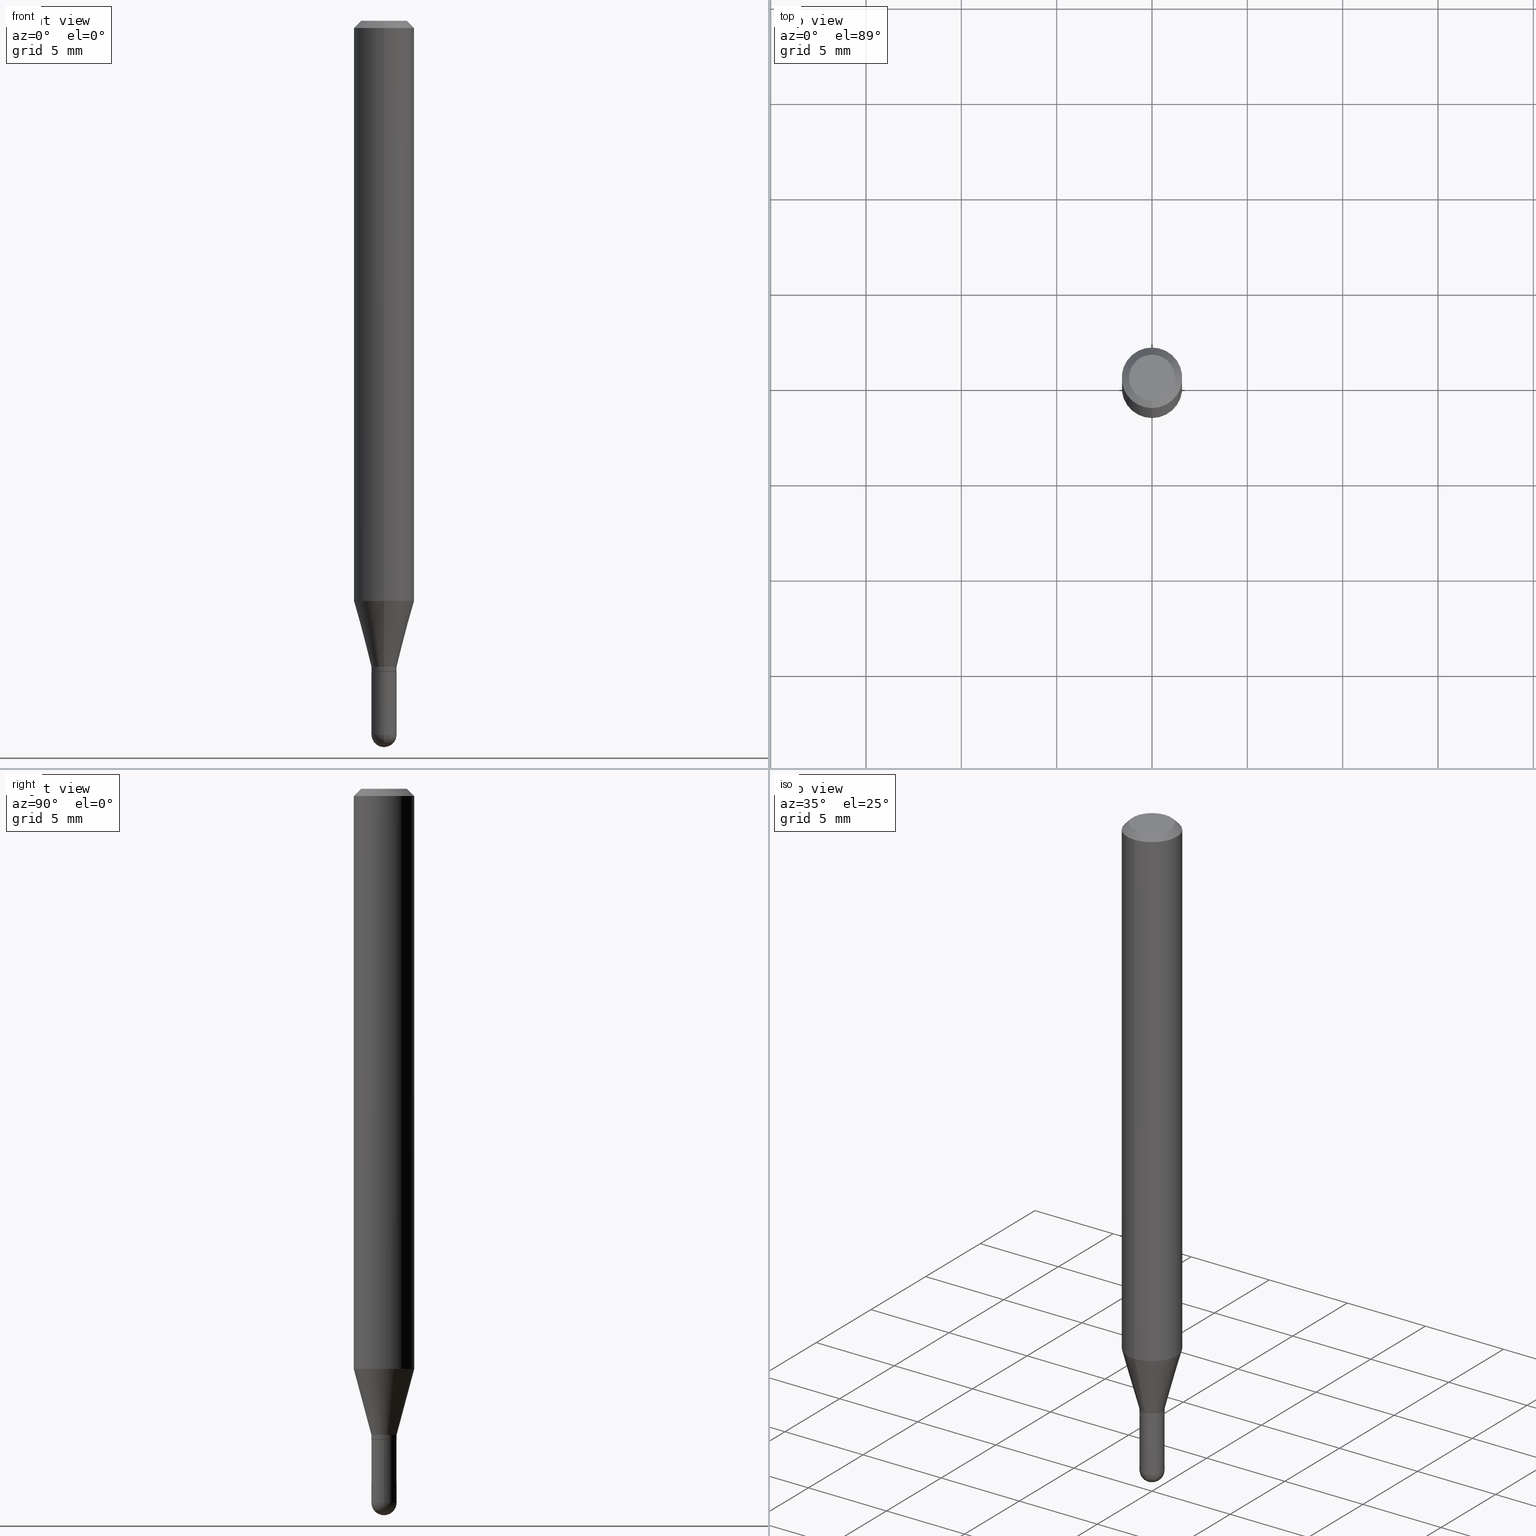
[diagram: canonical four-view strip — front | top / right | iso, engineering-drawing reading convention]
A machine part, canonical four-view strip (front | top / right | iso — engineering-drawing reading convention). The complete STEP part file that produces these views, byte-faithful:
ISO-10303-21;
HEADER;
FILE_DESCRIPTION (( 'STEP AP203' ),
    '1' );
FILE_NAME ('00929.STEP',
    '2024-03-07T18:58:56',
    ( '' ),
    ( '' ),
    'SwSTEP 2.0',
    'SolidWorks 2023',
    '' );
FILE_SCHEMA (( 'CONFIG_CONTROL_DESIGN' ));
ENDSEC;

DATA;
#1 = ORIENTED_EDGE ( 'NONE', *, *, #201, .T. ) ;
#2 = FACE_OUTER_BOUND ( 'NONE', #247, .T. ) ;
#3 = EDGE_CURVE ( 'NONE', #131, #213, #111, .T. ) ;
#4 = DIRECTION ( 'NONE',  ( -2.445468806185136877E-29, 3.491481338843145188E-15, 1.000000000000000000 ) ) ;
#5 = CIRCLE ( 'NONE', #411, 0.06250000000000000000 ) ;
#6 = AXIS2_PLACEMENT_3D ( 'NONE', #187, #18, #347 ) ;
#7 = CARTESIAN_POINT ( 'NONE',  ( 3.668183042626222503E-31, -5.237250888057462898E-17, -0.01500000000000000812 ) ) ;
#8 = DIRECTION ( 'NONE',  ( 1.000000000000000000, -6.982962677686265922E-15, 4.883557194083112340E-29 ) ) ;
#9 = EDGE_CURVE ( 'NONE', #321, #204, #487, .T. ) ;
#10 = DIRECTION ( 'NONE',  ( -2.445455361750813344E-29, 3.491500592038306462E-15, 1.000000000000000000 ) ) ;
#11 = CARTESIAN_POINT ( 'NONE',  ( 1.815570296198757649E-16, 0.02599999999999530464, -1.344000000000000306 ) ) ;
#12 = LINE ( 'NONE', #165, #62 ) ;
#13 = MANIFOLD_SOLID_BREP ( 'Body-Move/Copy2[1]', #440 ) ;
#14 = APPLICATION_PROTOCOL_DEFINITION ( 'international standard', 'config_control_design', 1994, #392 ) ;
#15 = DIRECTION ( 'NONE',  ( 2.438088387897960049E-29, -3.491481338843145188E-15, -1.000000000000000000 ) ) ;
#16 = AXIS2_PLACEMENT_3D ( 'NONE', #245, #37, #506 ) ;
#17 = LINE ( 'NONE', #305, #71 ) ;
#18 = DIRECTION ( 'NONE',  ( -2.445455361750813344E-29, 3.491500592038306462E-15, 1.000000000000000000 ) ) ;
#19 = EDGE_CURVE ( 'NONE', #321, #194, #364, .T. ) ;
#20 = DATE_AND_TIME ( #490, #405 ) ;
#21 = CARTESIAN_POINT ( 'NONE',  ( 3.667091493101772082E-29, -5.238814049103609942E-15, -1.500000000000000222 ) ) ;
#22 = CARTESIAN_POINT ( 'NONE',  ( 3.286692006193093008E-29, -4.692576795699484548E-15, -1.344000000000000306 ) ) ;
#23 = PERSON_AND_ORGANIZATION ( #394, #496 ) ;
#24 = ADVANCED_FACE ( 'NONE', ( #413 ), #336, .T. ) ;
#25 = ORIENTED_EDGE ( 'NONE', *, *, #395, .F. ) ;
#26 = CARTESIAN_POINT ( 'NONE',  ( 4.440892098500625669E-16, 0.06250000000000000000, -2.182187870023941539E-16 ) ) ;
#27 = DIRECTION ( 'NONE',  ( -2.445455361750813344E-29, 3.491500592038306462E-15, 1.000000000000000000 ) ) ;
#28 = CARTESIAN_POINT ( 'NONE',  ( 4.440892098500920998E-16, 0.06249999999999995143, -0.01500000000000022669 ) ) ;
#29 = EDGE_CURVE ( 'NONE', #204, #152, #122, .T. ) ;
#30 = CARTESIAN_POINT ( 'NONE',  ( -1.815570296198097471E-16, -0.02600000000000458195, -1.334000000000000075 ) ) ;
#31 = CIRCLE ( 'NONE', #16, 0.02600000000000000228 ) ;
#32 = CONICAL_SURFACE ( 'NONE', #385, 0.06250000000000000000, 0.7853981633974483900 ) ;
#33 = CARTESIAN_POINT ( 'NONE',  ( 0.000000000000000000, 0.000000000000000000, 0.000000000000000000 ) ) ;
#34 = ORIENTED_EDGE ( 'NONE', *, *, #44, .F. ) ;
#35 = EDGE_CURVE ( 'NONE', #194, #152, #12, .T. ) ;
#36 = ORIENTED_EDGE ( 'NONE', *, *, #238, .T. ) ;
#37 = DIRECTION ( 'NONE',  ( -2.445468806185136597E-29, 3.491481338843145583E-15, 1.000000000000000000 ) ) ;
#38 = VERTEX_POINT ( 'NONE', #330 ) ;
#39 = EDGE_CURVE ( 'NONE', #399, #478, #136, .T. ) ;
#40 = CYLINDRICAL_SURFACE ( 'NONE', #218, 0.02599999999999992248 ) ;
#41 = CARTESIAN_POINT ( 'NONE',  ( 3.262237452575584502E-29, -4.657661789779100517E-15, -1.334000000000000075 ) ) ;
#42 = ORIENTED_EDGE ( 'NONE', *, *, #463, .T. ) ;
#43 = CARTESIAN_POINT ( 'NONE',  ( 3.668183042626222503E-31, -5.237250888057462898E-17, -0.01500000000000000812 ) ) ;
#44 = EDGE_CURVE ( 'NONE', #69, #478, #189, .T. ) ;
#45 = CARTESIAN_POINT ( 'NONE',  ( 1.829647544582583037E-16, 0.02549999999999530420, -1.344000000000000306 ) ) ;
#46 = DIRECTION ( 'NONE',  ( -6.982962677686266711E-15, -1.000000000000000000, 0.000000000000000000 ) ) ;
#47 = ORIENTED_EDGE ( 'NONE', *, *, #97, .T. ) ;
#48 = DIRECTION ( 'NONE',  ( -6.982962677686266711E-15, -1.000000000000000000, 3.491500592038306462E-15 ) ) ;
#49 = DIRECTION ( 'NONE',  ( -6.982962677686265133E-15, -1.000000000000000000, 0.000000000000000000 ) ) ;
#50 = DIRECTION ( 'NONE',  ( 6.982962677686265922E-15, 1.000000000000000000, -3.483106191921935554E-15 ) ) ;
#51 = DIRECTION ( 'NONE',  ( -1.000000000000000000, 6.982962677686265922E-15, -4.883557194083112901E-29 ) ) ;
#52 = ORIENTED_EDGE ( 'NONE', *, *, #201, .F. ) ;
#53 = APPLICATION_CONTEXT ( 'configuration controlled 3d designs of mechanical parts and assemblies' ) ;
#54 = PLANE ( 'NONE',  #134 ) ;
#55 = DIRECTION ( 'NONE',  ( 1.839019923739601893E-15, 0.2588190451025252359, 0.9659258262890670910 ) ) ;
#56 = AXIS2_PLACEMENT_3D ( 'NONE', #486, #299, #444 ) ;
#57 = DIRECTION ( 'NONE',  ( -7.105427357601001070E-15, -1.000000000000000000, 0.000000000000000000 ) ) ;
#58 = CARTESIAN_POINT ( 'NONE',  ( 4.364351673553919652E-16, 0.06249999999999995143, -0.01500000000000022669 ) ) ;
#59 = CARTESIAN_POINT ( 'NONE',  ( 0.02599999999999999534, -4.874107949025031235E-15, -1.344000000000000306 ) ) ;
#60 = APPROVAL_DATE_TIME ( #183, #266 ) ;
#61 = EDGE_CURVE ( 'NONE', #38, #371, #507, .T. ) ;
#62 = VECTOR ( 'NONE', #223, 39.37007874015748143 ) ;
#63 = APPROVAL_DATE_TIME ( #351, #286 ) ;
#64 = VECTOR ( 'NONE', #168, 39.37007874015748143 ) ;
#65 = CARTESIAN_POINT ( 'NONE',  ( 0.000000000000000000, 0.000000000000000000, 0.000000000000000000 ) ) ;
#66 = PERSON_AND_ORGANIZATION ( #394, #496 ) ;
#67 = DIRECTION ( 'NONE',  ( -2.445468806185136597E-29, 3.491481338843145583E-15, 1.000000000000000000 ) ) ;
#68 = DIRECTION ( 'NONE',  ( 1.000000000000000000, -6.982962677686266711E-15, 4.876176775795935793E-29 ) ) ;
#69 = VERTEX_POINT ( 'NONE', #148 ) ;
#70 = DIRECTION ( 'NONE',  ( -6.982962677686265922E-15, -1.000000000000000000, 0.000000000000000000 ) ) ;
#71 = VECTOR ( 'NONE', #126, 39.37007874015748143 ) ;
#72 = AXIS2_PLACEMENT_3D ( 'NONE', #41, #403, #130 ) ;
#73 = ORIENTED_EDGE ( 'NONE', *, *, #428, .T. ) ;
#74 = ORIENTED_EDGE ( 'NONE', *, *, #324, .F. ) ;
#75 = FACE_OUTER_BOUND ( 'NONE', #210, .T. ) ;
#76 = ADVANCED_FACE ( 'NONE', ( #75 ), #315, .T. ) ;
#77 = EDGE_LOOP ( 'NONE', ( #88, #333, #465, #472 ) ) ;
#78 = CARTESIAN_POINT ( 'NONE',  ( 3.602397587965025364E-29, -5.149627575132580366E-15, -1.474000000000000199 ) ) ;
#79 = FACE_OUTER_BOUND ( 'NONE', #329, .T. ) ;
#80 = ORIENTED_EDGE ( 'NONE', *, *, #428, .F. ) ;
#81 = AXIS2_PLACEMENT_3D ( 'NONE', #99, #373, #50 ) ;
#82 = AXIS2_PLACEMENT_3D ( 'NONE', #269, #462, #158 ) ;
#83 = DIRECTION ( 'NONE',  ( -6.982962677686265922E-15, -1.000000000000000000, 0.000000000000000000 ) ) ;
#84 = EDGE_LOOP ( 'NONE', ( #239, #511, #425, #331 ) ) ;
#85 = FACE_OUTER_BOUND ( 'NONE', #164, .T. ) ;
#86 = ORIENTED_EDGE ( 'NONE', *, *, #9, .T. ) ;
#87 = DIRECTION ( 'NONE',  ( -2.445468806185136597E-29, 3.491481338843145583E-15, 1.000000000000000000 ) ) ;
#88 = ORIENTED_EDGE ( 'NONE', *, *, #434, .F. ) ;
#89 = CARTESIAN_POINT ( 'NONE',  ( 3.602397587965025364E-29, -5.149627575132580366E-15, -1.474000000000000199 ) ) ;
#90 = DIRECTION ( 'NONE',  ( -6.982962677686266711E-15, -1.000000000000000000, 3.491500592038306462E-15 ) ) ;
#91 = VECTOR ( 'NONE', #501, 39.37007874015748143 ) ;
#92 = CIRCLE ( 'NONE', #236, 0.02600000000000000228 ) ;
#93 = DIRECTION ( 'NONE',  ( -2.445455361750813344E-29, 3.491500592038306462E-15, 1.000000000000000000 ) ) ;
#94 = EDGE_LOOP ( 'NONE', ( #73, #441 ) ) ;
#95 = FACE_OUTER_BOUND ( 'NONE', #474, .T. ) ;
#96 = DIRECTION ( 'NONE',  ( -2.445468806185136597E-29, 3.491481338843145583E-15, 1.000000000000000000 ) ) ;
#97 = EDGE_CURVE ( 'NONE', #151, #367, #357, .T. ) ;
#98 = DIRECTION ( 'NONE',  ( -6.982962677686265922E-15, -1.000000000000000000, 0.000000000000000000 ) ) ;
#99 = CARTESIAN_POINT ( 'NONE',  ( 3.668183042626222503E-31, -5.237250888057462898E-17, -0.01500000000000000812 ) ) ;
#100 = EDGE_LOOP ( 'NONE', ( #366, #80, #47, #124 ) ) ;
#101 = DIRECTION ( 'NONE',  ( -2.445468806185136597E-29, 3.491481338843145583E-15, 1.000000000000000000 ) ) ;
#102 = DIRECTION ( 'NONE',  ( -4.851104656540964275E-15, -0.7071067811865500152, -0.7071067811865450192 ) ) ;
#103 = CARTESIAN_POINT ( 'NONE',  ( 2.929117879069690372E-29, -4.182050087227853804E-15, -1.197780145523736239 ) ) ;
#104 = AXIS2_PLACEMENT_3D ( 'NONE', #380, #8, #162 ) ;
#105 = AXIS2_PLACEMENT_3D ( 'NONE', #7, #372, #448 ) ;
#106 = ORIENTED_EDGE ( 'NONE', *, *, #133, .T. ) ;
#107 = CARTESIAN_POINT ( 'NONE',  ( -1.815570296198423862E-16, -0.02599999999999992248, 9.077901539299569733E-17 ) ) ;
#108 = PERSON_AND_ORGANIZATION ( #394, #496 ) ;
#109 = ADVANCED_FACE ( 'NONE', ( #362 ), #301, .T. ) ;
#110 = AXIS2_PLACEMENT_3D ( 'NONE', #439, #476, #98 ) ;
#111 = CIRCLE ( 'NONE', #104, 0.02599999999999997452 ) ;
#112 = CARTESIAN_POINT ( 'NONE',  ( 3.604621020316892110E-29, -5.146443493454796836E-15, -1.474000000000000199 ) ) ;
#113 = EDGE_CURVE ( 'NONE', #371, #38, #5, .T. ) ;
#114 = APPROVAL_ROLE ( '' ) ;
#115 = COORDINATED_UNIVERSAL_TIME_OFFSET ( 5, 0, .BEHIND. ) ;
#116 = CARTESIAN_POINT ( 'NONE',  ( 3.286692006193093008E-29, -4.692576795699484548E-15, -1.344000000000000306 ) ) ;
#117 = ADVANCED_BREP_SHAPE_REPRESENTATION ( '00929', ( #13, #359, #174 ), #343 ) ;
#118 = EDGE_LOOP ( 'NONE', ( #52, #198 ) ) ;
#119 = ORIENTED_EDGE ( 'NONE', *, *, #324, .T. ) ;
#120 = CLOSED_SHELL ( 'NONE', ( #447, #109, #344, #159, #407, #382, #199, #138, #171, #294, #24, #272 ) ) ;
#121 = LOCAL_TIME ( 13, 58, 56.00000000000000000, #339 ) ;
#122 = CIRCLE ( 'NONE', #235, 0.02599999999999992248 ) ;
#123 = APPROVAL_PERSON_ORGANIZATION ( #186, #266, #114 ) ;
#124 = ORIENTED_EDGE ( 'NONE', *, *, #443, .T. ) ;
#125 = CARTESIAN_POINT ( 'NONE',  ( 2.166527961827565846E-46, -3.093261802976753725E-32, -8.859405065060967167E-18 ) ) ;
#126 = DIRECTION ( 'NONE',  ( -4.937700262164674260E-15, -0.7071067811865632269, 0.7071067811865319186 ) ) ;
#127 = CARTESIAN_POINT ( 'NONE',  ( 0.000000000000000000, 0.000000000000000000, 0.000000000000000000 ) ) ;
#128 = VERTEX_POINT ( 'NONE', #139 ) ;
#129 = CALENDAR_DATE ( 2024, 7, 3 ) ;
#130 = DIRECTION ( 'NONE',  ( -6.982962677686266711E-15, -1.000000000000000000, 0.000000000000000000 ) ) ;
#131 = VERTEX_POINT ( 'NONE', #21 ) ;
#132 = LENGTH_MEASURE_WITH_UNIT ( LENGTH_MEASURE( 0.02539999999999999897 ), #214 );
#133 = EDGE_CURVE ( 'NONE', #404, #321, #17, .T. ) ;
#134 = AXIS2_PLACEMENT_3D ( 'NONE', #11, #15, #304 ) ;
#135 = LOCAL_TIME ( 13, 58, 56.00000000000000000, #230 ) ;
#136 = LINE ( 'NONE', #377, #273 ) ;
#137 = VERTEX_POINT ( 'NONE', #45 ) ;
#138 = ADVANCED_FACE ( 'NONE', ( #184 ), #431, .T. ) ;
#139 = CARTESIAN_POINT ( 'NONE',  ( -4.364351673553912750E-16, -0.06250000000000005551, -0.01499999999999979128 ) ) ;
#140 = CARTESIAN_POINT ( 'NONE',  ( 3.286710075512824263E-29, -4.692550919405188553E-15, -1.344000000000000306 ) ) ;
#141 = SPHERICAL_SURFACE ( 'NONE', #489, 0.02599999999999997452 ) ;
#142 = CARTESIAN_POINT ( 'NONE',  ( -0.02600000000000000228, 1.847411112976260645E-16, -1.278923123466275736E-30 ) ) ;
#143 = EDGE_CURVE ( 'NONE', #152, #38, #206, .T. ) ;
#144 = CIRCLE ( 'NONE', #423, 0.02549999999999999489 ) ;
#145 = CARTESIAN_POINT ( 'NONE',  ( 3.840629472727447874E-16, 0.04749999999999999362, -1.747056831868805136E-16 ) ) ;
#146 = EDGE_CURVE ( 'NONE', #194, #321, #217, .T. ) ;
#147 = DATE_AND_TIME ( #386, #135 ) ;
#148 = CARTESIAN_POINT ( 'NONE',  ( -0.02599999999999999534, -4.734756095132367271E-15, -1.344000000000000306 ) ) ;
#149 = CARTESIAN_POINT ( 'NONE',  ( -4.364351673553624816E-16, -0.06250000000000420497, -1.197780145523736017 ) ) ;
#150 = EDGE_CURVE ( 'NONE', #157, #69, #408, .T. ) ;
#151 = VERTEX_POINT ( 'NONE', #145 ) ;
#152 = VERTEX_POINT ( 'NONE', #179 ) ;
#153 = AXIS2_PLACEMENT_3D ( 'NONE', #494, #67, #192 ) ;
#154 = AXIS2_PLACEMENT_3D ( 'NONE', #220, #208, #48 ) ;
#155 = ORIENTED_EDGE ( 'NONE', *, *, #256, .F. ) ;
#156 = CARTESIAN_POINT ( 'NONE',  ( 3.604621020316892110E-29, -5.146443493454796836E-15, -1.474000000000000199 ) ) ;
#157 = VERTEX_POINT ( 'NONE', #341 ) ;
#158 = DIRECTION ( 'NONE',  ( 1.000000000000000000, -6.982962677686258822E-15, 0.000000000000000000 ) ) ;
#159 = ADVANCED_FACE ( 'NONE', ( #166 ), #332, .T. ) ;
#160 = CARTESIAN_POINT ( 'NONE',  ( 1.847411112976576929E-16, 0.02599999999999514505, -1.343500000000000361 ) ) ;
#161 = ORIENTED_EDGE ( 'NONE', *, *, #284, .T. ) ;
#162 = DIRECTION ( 'NONE',  ( 6.982962677686265922E-15, 1.000000000000000000, 0.000000000000000000 ) ) ;
#163 = CIRCLE ( 'NONE', #369, 0.06250000000000000000 ) ;
#164 = EDGE_LOOP ( 'NONE', ( #246, #361, #86, #255 ) ) ;
#165 = CARTESIAN_POINT ( 'NONE',  ( 1.847411112976254729E-16, 0.02599999999999992248, -9.077901539299569733E-17 ) ) ;
#166 = FACE_OUTER_BOUND ( 'NONE', #483, .T. ) ;
#167 = ORIENTED_EDGE ( 'NONE', *, *, #417, .T. ) ;
#168 = DIRECTION ( 'NONE',  ( -2.445455361750813344E-29, 3.491500592038306462E-15, 1.000000000000000000 ) ) ;
#169 = DIRECTION ( 'NONE',  ( -2.445455361750813344E-29, 3.491500592038306462E-15, 1.000000000000000000 ) ) ;
#170 = ORIENTED_EDGE ( 'NONE', *, *, #443, .F. ) ;
#171 = ADVANCED_FACE ( 'NONE', ( #388 ), #271, .F. ) ;
#172 = DIRECTION ( 'NONE',  ( -2.445455361750813344E-29, 3.491500592038306462E-15, 1.000000000000000000 ) ) ;
#173 = AXIS2_PLACEMENT_3D ( 'NONE', #140, #101, #485 ) ;
#174 = AXIS2_PLACEMENT_3D ( 'NONE', #257, #409, #215 ) ;
#175 = APPROVAL_PERSON_ORGANIZATION ( #265, #306, #348 ) ;
#176 = FACE_OUTER_BOUND ( 'NONE', #293, .T. ) ;
#177 = APPROVAL_STATUS ( 'not_yet_approved' ) ;
#178 = FACE_OUTER_BOUND ( 'NONE', #203, .T. ) ;
#179 = CARTESIAN_POINT ( 'NONE',  ( 3.144151605738750813E-16, 0.02599999999999526648, -1.334000000000000075 ) ) ;
#180 = APPROVAL_STATUS ( 'not_yet_approved' ) ;
#181 = AXIS2_PLACEMENT_3D ( 'NONE', #103, #262, #346 ) ;
#182 = CC_DESIGN_SECURITY_CLASSIFICATION ( #268, ( #412 ) ) ;
#183 = DATE_AND_TIME ( #383, #261 ) ;
#184 = FACE_OUTER_BOUND ( 'NONE', #100, .T. ) ;
#185 = CARTESIAN_POINT ( 'NONE',  ( -1.780655482809668879E-16, -0.02550000000000468559, -1.344000000000000306 ) ) ;
#186 = PERSON_AND_ORGANIZATION ( #394, #496 ) ;
#187 = CARTESIAN_POINT ( 'NONE',  ( 3.262237452575584502E-29, -4.657661789779100517E-15, -1.334000000000000075 ) ) ;
#188 = PERSON_AND_ORGANIZATION_ROLE ( 'design_supplier' ) ;
#189 = CIRCLE ( 'NONE', #173, 0.02599999999999999534 ) ;
#190 = AXIS2_PLACEMENT_3D ( 'NONE', #335, #445, #512 ) ;
#191 = SHAPE_DEFINITION_REPRESENTATION ( #389, #117 ) ;
#192 = DIRECTION ( 'NONE',  ( 1.000000000000000000, -6.982962677686266711E-15, 4.876176775795935793E-29 ) ) ;
#193 = DIRECTION ( 'NONE',  ( 2.445455361750812783E-29, -3.491500592038306462E-15, -1.000000000000000000 ) ) ;
#194 = VERTEX_POINT ( 'NONE', #160 ) ;
#195 = DIRECTION ( 'NONE',  ( -2.445455361750812783E-29, 3.491500592038306462E-15, 1.000000000000000000 ) ) ;
#196 = ADVANCED_FACE ( 'NONE', ( #500 ), #422, .T. ) ;
#197 = CARTESIAN_POINT ( 'NONE',  ( 1.815570296198788710E-16, 0.02599999999999483974, -1.474000000000000199 ) ) ;
#198 = ORIENTED_EDGE ( 'NONE', *, *, #238, .F. ) ;
#199 = ADVANCED_FACE ( 'NONE', ( #393 ), #202, .T. ) ;
#200 = ORIENTED_EDGE ( 'NONE', *, *, #19, .T. ) ;
#201 = EDGE_CURVE ( 'NONE', #404, #137, #144, .T. ) ;
#202 = CYLINDRICAL_SURFACE ( 'NONE', #227, 0.06250000000000000000 ) ;
#203 = EDGE_LOOP ( 'NONE', ( #291, #437, #435, #25 ) ) ;
#204 = VERTEX_POINT ( 'NONE', #318 ) ;
#205 = AXIS2_PLACEMENT_3D ( 'NONE', #112, #259, #295 ) ;
#206 = LINE ( 'NONE', #296, #353 ) ;
#207 = ORIENTED_EDGE ( 'NONE', *, *, #228, .F. ) ;
#208 = DIRECTION ( 'NONE',  ( -2.445455361750813344E-29, 3.491500592038306462E-15, 1.000000000000000000 ) ) ;
#209 = FACE_OUTER_BOUND ( 'NONE', #84, .T. ) ;
#210 = EDGE_LOOP ( 'NONE', ( #427, #167, #322, #312, #34 ) ) ;
#211 = DIRECTION ( 'NONE',  ( -6.982962677686265922E-15, -1.000000000000000000, 4.370956789862821150E-15 ) ) ;
#212 = ORIENTED_EDGE ( 'NONE', *, *, #228, .T. ) ;
#213 = VERTEX_POINT ( 'NONE', #197 ) ;
#214 =( LENGTH_UNIT ( ) NAMED_UNIT ( * ) SI_UNIT ( $, .METRE. ) );
#215 = DIRECTION ( 'NONE',  ( 1.000000000000000000, 0.000000000000000000, 0.000000000000000000 ) ) ;
#216 = ORIENTED_EDGE ( 'NONE', *, *, #35, .T. ) ;
#217 = CIRCLE ( 'NONE', #368, 0.02599999999999991901 ) ;
#218 = AXIS2_PLACEMENT_3D ( 'NONE', #127, #503, #451 ) ;
#219 = CARTESIAN_POINT ( 'NONE',  ( 3.285469278512218956E-29, -4.690831045403466411E-15, -1.343500000000000361 ) ) ;
#220 = CARTESIAN_POINT ( 'NONE',  ( 0.000000000000000000, 0.000000000000000000, 0.000000000000000000 ) ) ;
#221 = CC_DESIGN_DATE_AND_TIME_ASSIGNMENT ( #313, #311, ( #268 ) ) ;
#222 = DIRECTION ( 'NONE',  ( 4.937700262164548042E-15, 0.7071067811865451302, -0.7071067811865499042 ) ) ;
#223 = DIRECTION ( 'NONE',  ( -2.445455361750813344E-29, 3.491500592038306462E-15, 1.000000000000000000 ) ) ;
#224 = PRODUCT ( '00929', '00929', '', ( #378 ) ) ;
#225 = COORDINATED_UNIVERSAL_TIME_OFFSET ( 5, 0, .BEHIND. ) ;
#226 = CARTESIAN_POINT ( 'NONE',  ( 0.02600000000000000228, -5.101054236049835376E-15, -1.474000000000000199 ) ) ;
#227 = AXIS2_PLACEMENT_3D ( 'NONE', #314, #27, #275 ) ;
#228 = EDGE_CURVE ( 'NONE', #137, #194, #498, .T. ) ;
#229 = CONICAL_SURFACE ( 'NONE', #56, 0.02599999999999992248, 0.2617993877991505181 ) ;
#230 = COORDINATED_UNIVERSAL_TIME_OFFSET ( 5, 0, .BEHIND. ) ;
#231 = FACE_OUTER_BOUND ( 'NONE', #118, .T. ) ;
#232 = PRODUCT_RELATED_PRODUCT_CATEGORY ( 'detail', '', ( #224 ) ) ;
#233 = ADVANCED_FACE ( 'NONE', ( #79 ), #54, .F. ) ;
#234 = ORIENTED_EDGE ( 'NONE', *, *, #39, .F. ) ;
#235 = AXIS2_PLACEMENT_3D ( 'NONE', #340, #93, #46 ) ;
#236 = AXIS2_PLACEMENT_3D ( 'NONE', #156, #87, #482 ) ;
#237 = DIRECTION ( 'NONE',  ( 6.982962677686265922E-15, 1.000000000000000000, 0.000000000000000000 ) ) ;
#238 = EDGE_CURVE ( 'NONE', #137, #404, #415, .T. ) ;
#239 = ORIENTED_EDGE ( 'NONE', *, *, #452, .F. ) ;
#240 = DIRECTION ( 'NONE',  ( -2.445455361750813344E-29, 3.491500592038306462E-15, 1.000000000000000000 ) ) ;
#241 = VECTOR ( 'NONE', #222, 39.37007874015748143 ) ;
#242 = ORIENTED_EDGE ( 'NONE', *, *, #349, .T. ) ;
#243 = CIRCLE ( 'NONE', #310, 0.02600000000000000228 ) ;
#244 = LINE ( 'NONE', #30, #354 ) ;
#245 = CARTESIAN_POINT ( 'NONE',  ( 3.604621020316892110E-29, -5.146443493454796836E-15, -1.474000000000000199 ) ) ;
#246 = ORIENTED_EDGE ( 'NONE', *, *, #35, .F. ) ;
#247 = EDGE_LOOP ( 'NONE', ( #200, #216, #436, #398 ) ) ;
#248 = CARTESIAN_POINT ( 'NONE',  ( -1.847411112975899002E-16, -0.02600000000000513706, -1.474000000000000199 ) ) ;
#249 = DIRECTION ( 'NONE',  ( -2.445455361750813344E-29, 3.491500592038306462E-15, 1.000000000000000000 ) ) ;
#250 = UNCERTAINTY_MEASURE_WITH_UNIT (LENGTH_MEASURE( 1.000000000000000082E-05 ), #406, 'distance_accuracy_value', 'NONE');
#251 = ORIENTED_EDGE ( 'NONE', *, *, #143, .F. ) ;
#252 = DIRECTION ( 'NONE',  ( 6.982962677686265922E-15, 1.000000000000000000, 0.000000000000000000 ) ) ;
#253 = CIRCLE ( 'NONE', #292, 0.04749999999999999362 ) ;
#254 = DIRECTION ( 'NONE',  ( 1.000000000000000000, -6.982962677686257244E-15, 0.000000000000000000 ) ) ;
#255 = ORIENTED_EDGE ( 'NONE', *, *, #277, .F. ) ;
#256 = EDGE_CURVE ( 'NONE', #213, #157, #31, .T. ) ;
#257 = CARTESIAN_POINT ( 'NONE',  ( 0.000000000000000000, 0.000000000000000000, 0.000000000000000000 ) ) ;
#258 = DIRECTION ( 'NONE',  ( 2.445455361750813344E-29, -3.491500592038306462E-15, -1.000000000000000000 ) ) ;
#259 = DIRECTION ( 'NONE',  ( -2.445468806185136597E-29, 3.491481338843145583E-15, 1.000000000000000000 ) ) ;
#260 = CC_DESIGN_PERSON_AND_ORGANIZATION_ASSIGNMENT ( #493, #420, ( #268 ) ) ;
#261 = LOCAL_TIME ( 13, 58, 56.00000000000000000, #345 ) ;
#262 = DIRECTION ( 'NONE',  ( -2.445455361750813344E-29, 3.491500592038306462E-15, 1.000000000000000000 ) ) ;
#263 = LINE ( 'NONE', #370, #337 ) ;
#264 = APPROVAL_STATUS ( 'not_yet_approved' ) ;
#265 = PERSON_AND_ORGANIZATION ( #394, #496 ) ;
#266 = APPROVAL ( #180, 'UNSPECIFIED' ) ;
#267 = AXIS2_PLACEMENT_3D ( 'NONE', #464, #432, #83 ) ;
#268 = SECURITY_CLASSIFICATION ( '', '', #270 ) ;
#269 = CARTESIAN_POINT ( 'NONE',  ( 3.286710075512824263E-29, -4.692550919405188553E-15, -1.344000000000000306 ) ) ;
#270 = SECURITY_CLASSIFICATION_LEVEL ( 'unclassified' ) ;
#271 = PLANE ( 'NONE',  #279 ) ;
#272 = ADVANCED_FACE ( 'NONE', ( #85 ), #40, .T. ) ;
#273 = VECTOR ( 'NONE', #4, 39.37007874015748143 ) ;
#274 = CIRCLE ( 'NONE', #190, 0.04749999999999999362 ) ;
#275 = DIRECTION ( 'NONE',  ( -6.982962677686265922E-15, -1.000000000000000000, 3.491500592038306462E-15 ) ) ;
#276 = CARTESIAN_POINT ( 'NONE',  ( 1.811883976188583721E-16, 0.02549999999999530420, -1.344000000000000306 ) ) ;
#277 = EDGE_CURVE ( 'NONE', #152, #204, #327, .T. ) ;
#278 = ORIENTED_EDGE ( 'NONE', *, *, #19, .F. ) ;
#279 = AXIS2_PLACEMENT_3D ( 'NONE', #421, #193, #358 ) ;
#280 = EDGE_LOOP ( 'NONE', ( #1, #212, #278, #374 ) ) ;
#281 = CC_DESIGN_APPROVAL ( #286, ( #328 ) ) ;
#282 = DESIGN_CONTEXT ( 'detailed design', #392, 'design' ) ;
#283 = ORIENTED_EDGE ( 'NONE', *, *, #150, .T. ) ;
#284 = EDGE_CURVE ( 'NONE', #38, #367, #492, .T. ) ;
#285 = ORIENTED_EDGE ( 'NONE', *, *, #44, .T. ) ;
#286 = APPROVAL ( #177, 'UNSPECIFIED' ) ;
#287 = DIRECTION ( 'NONE',  ( -6.982962677686265922E-15, -1.000000000000000000, 3.483106191921935554E-15 ) ) ;
#288 = ORIENTED_EDGE ( 'NONE', *, *, #459, .F. ) ;
#289 =( NAMED_UNIT ( * ) SI_UNIT ( $, .STERADIAN. ) SOLID_ANGLE_UNIT ( ) );
#290 = AXIS2_PLACEMENT_3D ( 'NONE', #65, #352, #495 ) ;
#291 = ORIENTED_EDGE ( 'NONE', *, *, #29, .T. ) ;
#292 = AXIS2_PLACEMENT_3D ( 'NONE', #125, #249, #90 ) ;
#293 = EDGE_LOOP ( 'NONE', ( #251, #401, #320, #470 ) ) ;
#294 = ADVANCED_FACE ( 'NONE', ( #231 ), #418, .F. ) ;
#295 = DIRECTION ( 'NONE',  ( 1.000000000000000000, -6.982962677686257244E-15, 0.000000000000000000 ) ) ;
#296 = CARTESIAN_POINT ( 'NONE',  ( 1.847411112976581120E-16, 0.02599999999999526648, -1.334000000000000075 ) ) ;
#297 = APPLICATION_PROTOCOL_DEFINITION ( 'international standard', 'config_control_design', 1994, #53 ) ;
#298 = CARTESIAN_POINT ( 'NONE',  ( 3.604621020316892110E-29, -5.146443493454796836E-15, -1.474000000000000199 ) ) ;
#299 = DIRECTION ( 'NONE',  ( -2.445455361750813344E-29, 3.491500592038306462E-15, 1.000000000000000000 ) ) ;
#300 = APPROVAL_ROLE ( '' ) ;
#301 = CONICAL_SURFACE ( 'NONE', #334, 0.02549999999999999489, 0.7853981633974739252 ) ;
#302 = ORIENTED_EDGE ( 'NONE', *, *, #3, .F. ) ;
#303 = CONICAL_SURFACE ( 'NONE', #72, 0.02599999999999992248, 0.2617993877991505181 ) ;
#304 = DIRECTION ( 'NONE',  ( -1.000000000000000000, 6.982962677686265922E-15, -4.876176775795935793E-29 ) ) ;
#305 = CARTESIAN_POINT ( 'NONE',  ( -1.780655482809668879E-16, -0.02550000000000468559, -1.344000000000000306 ) ) ;
#306 = APPROVAL ( #264, 'UNSPECIFIED' ) ;
#307 = DATE_TIME_ROLE ( 'creation_date' ) ;
#308 = CARTESIAN_POINT ( 'NONE',  ( -1.815570296198101169E-16, -0.02600000000000469644, -1.343500000000000361 ) ) ;
#309 = DIMENSIONAL_EXPONENTS ( 1.000000000000000000, 0.000000000000000000, 0.000000000000000000, 0.000000000000000000, 0.000000000000000000, 0.000000000000000000, 0.000000000000000000 ) ;
#310 = AXIS2_PLACEMENT_3D ( 'NONE', #298, #96, #254 ) ;
#311 = DATE_TIME_ROLE ( 'classification_date' ) ;
#312 = ORIENTED_EDGE ( 'NONE', *, *, #39, .T. ) ;
#313 = DATE_AND_TIME ( #342, #468 ) ;
#314 = CARTESIAN_POINT ( 'NONE',  ( 0.000000000000000000, 0.000000000000000000, 0.000000000000000000 ) ) ;
#315 = CYLINDRICAL_SURFACE ( 'NONE', #153, 0.02600000000000000228 ) ;
#316 = DIRECTION ( 'NONE',  ( -1.000000000000000000, 6.982962677686265922E-15, -4.883557194083112901E-29 ) ) ;
#317 = ORIENTED_EDGE ( 'NONE', *, *, #434, .T. ) ;
#318 = CARTESIAN_POINT ( 'NONE',  ( -1.815570296198097471E-16, -0.02600000000000458195, -1.334000000000000075 ) ) ;
#319 = CIRCLE ( 'NONE', #205, 0.02600000000000000228 ) ;
#320 = ORIENTED_EDGE ( 'NONE', *, *, #395, .T. ) ;
#321 = VERTEX_POINT ( 'NONE', #308 ) ;
#322 = ORIENTED_EDGE ( 'NONE', *, *, #375, .T. ) ;
#323 = DIRECTION ( 'NONE',  ( -1.000000000000000000, 7.105427357601001070E-15, -4.926315508542082329E-29 ) ) ;
#324 = EDGE_CURVE ( 'NONE', #478, #69, #477, .T. ) ;
#325 = VECTOR ( 'NONE', #450, 39.37007874015748143 ) ;
#326 = VERTEX_POINT ( 'NONE', #248 ) ;
#327 = CIRCLE ( 'NONE', #6, 0.02599999999999992248 ) ;
#328 = PRODUCT_DEFINITION ( 'UNKNOWN', '', #412, #282 ) ;
#329 = EDGE_LOOP ( 'NONE', ( #119, #285 ) ) ;
#330 = CARTESIAN_POINT ( 'NONE',  ( 4.440892098500917054E-16, 0.06249999999999580197, -1.197780145523736683 ) ) ;
#331 = ORIENTED_EDGE ( 'NONE', *, *, #97, .F. ) ;
#332 = CYLINDRICAL_SURFACE ( 'NONE', #290, 0.06250000000000000000 ) ;
#333 = ORIENTED_EDGE ( 'NONE', *, *, #3, .T. ) ;
#334 = AXIS2_PLACEMENT_3D ( 'NONE', #384, #491, #338 ) ;
#335 = CARTESIAN_POINT ( 'NONE',  ( 2.166527961827565846E-46, -3.093261802976753725E-32, -8.859405065060967167E-18 ) ) ;
#336 = CONICAL_SURFACE ( 'NONE', #110, 0.02549999999999999489, 0.7853981633974739252 ) ;
#337 = VECTOR ( 'NONE', #102, 39.37007874015748143 ) ;
#338 = DIRECTION ( 'NONE',  ( -6.982962677686265922E-15, -1.000000000000000000, 0.000000000000000000 ) ) ;
#339 = COORDINATED_UNIVERSAL_TIME_OFFSET ( 5, 0, .BEHIND. ) ;
#340 = CARTESIAN_POINT ( 'NONE',  ( 3.262237452575584502E-29, -4.657661789779100517E-15, -1.334000000000000075 ) ) ;
#341 = CARTESIAN_POINT ( 'NONE',  ( -0.02600000000000000228, -4.734756095132367271E-15, -1.474000000000000199 ) ) ;
#342 = CALENDAR_DATE ( 2024, 7, 3 ) ;
#343 =( GEOMETRIC_REPRESENTATION_CONTEXT ( 3 ) GLOBAL_UNCERTAINTY_ASSIGNED_CONTEXT ( ( #250 ) ) GLOBAL_UNIT_ASSIGNED_CONTEXT ( ( #406, #453, #289 ) ) REPRESENTATION_CONTEXT ( 'NONE', 'WORKASPACE' ) );
#344 = ADVANCED_FACE ( 'NONE', ( #209 ), #32, .T. ) ;
#345 = COORDINATED_UNIVERSAL_TIME_OFFSET ( 5, 0, .BEHIND. ) ;
#346 = DIRECTION ( 'NONE',  ( -6.982962677686265922E-15, -1.000000000000000000, 4.370956789862821150E-15 ) ) ;
#347 = DIRECTION ( 'NONE',  ( -6.982962677686266711E-15, -1.000000000000000000, 0.000000000000000000 ) ) ;
#348 = APPROVAL_ROLE ( '' ) ;
#349 = EDGE_CURVE ( 'NONE', #399, #213, #243, .T. ) ;
#350 = DIRECTION ( 'NONE',  ( -6.982962677686265922E-15, -1.000000000000000000, 3.491500592038306462E-15 ) ) ;
#351 = DATE_AND_TIME ( #129, #121 ) ;
#352 = DIRECTION ( 'NONE',  ( -2.445455361750813344E-29, 3.491500592038306462E-15, 1.000000000000000000 ) ) ;
#353 = VECTOR ( 'NONE', #55, 39.37007874015748854 ) ;
#354 = VECTOR ( 'NONE', #504, 39.37007874015748854 ) ;
#355 = ORIENTED_EDGE ( 'NONE', *, *, #61, .T. ) ;
#356 = APPROVAL_DATE_TIME ( #147, #306 ) ;
#357 = LINE ( 'NONE', #58, #241 ) ;
#358 = DIRECTION ( 'NONE',  ( 6.982962677686265922E-15, 1.000000000000000000, -3.491500592038306462E-15 ) ) ;
#359 = MANIFOLD_SOLID_BREP ( 'Body-Move/Copy2[2]', #120 ) ;
#360 = ORIENTED_EDGE ( 'NONE', *, *, #113, .T. ) ;
#361 = ORIENTED_EDGE ( 'NONE', *, *, #146, .T. ) ;
#362 = FACE_OUTER_BOUND ( 'NONE', #280, .T. ) ;
#363 = ORIENTED_EDGE ( 'NONE', *, *, #256, .T. ) ;
#364 = CIRCLE ( 'NONE', #396, 0.02599999999999991901 ) ;
#365 = ADVANCED_FACE ( 'NONE', ( #429 ), #419, .T. ) ;
#366 = ORIENTED_EDGE ( 'NONE', *, *, #497, .F. ) ;
#367 = VERTEX_POINT ( 'NONE', #28 ) ;
#368 = AXIS2_PLACEMENT_3D ( 'NONE', #219, #169, #49 ) ;
#369 = AXIS2_PLACEMENT_3D ( 'NONE', #475, #172, #287 ) ;
#370 = CARTESIAN_POINT ( 'NONE',  ( -4.287811248607203282E-16, -0.06250000000000005551, -0.01499999999999979128 ) ) ;
#371 = VERTEX_POINT ( 'NONE', #149 ) ;
#372 = DIRECTION ( 'NONE',  ( -2.445455361750813344E-29, 3.491500592038306462E-15, 1.000000000000000000 ) ) ;
#373 = DIRECTION ( 'NONE',  ( 2.445455361750813344E-29, -3.491500592038306462E-15, -1.000000000000000000 ) ) ;
#374 = ORIENTED_EDGE ( 'NONE', *, *, #133, .F. ) ;
#375 = EDGE_CURVE ( 'NONE', #326, #399, #319, .T. ) ;
#376 = PERSON_AND_ORGANIZATION ( #394, #496 ) ;
#377 = CARTESIAN_POINT ( 'NONE',  ( 0.02600000000000000228, -1.815570296198429532E-16, 1.267805961706943404E-30 ) ) ;
#378 = MECHANICAL_CONTEXT ( 'NONE', #53, 'mechanical' ) ;
#379 = CIRCLE ( 'NONE', #105, 0.06250000000000000000 ) ;
#380 = CARTESIAN_POINT ( 'NONE',  ( 3.602397587965025364E-29, -5.149627575132580366E-15, -1.474000000000000199 ) ) ;
#381 = CARTESIAN_POINT ( 'NONE',  ( -4.364351673553916201E-16, -0.06250000000000000000, 2.182187870023941539E-16 ) ) ;
#382 = ADVANCED_FACE ( 'NONE', ( #176 ), #229, .T. ) ;
#383 = CALENDAR_DATE ( 2024, 7, 3 ) ;
#384 = CARTESIAN_POINT ( 'NONE',  ( 3.286692006193093008E-29, -4.692576795699484548E-15, -1.344000000000000306 ) ) ;
#385 = AXIS2_PLACEMENT_3D ( 'NONE', #43, #258, #410 ) ;
#386 = CALENDAR_DATE ( 2024, 7, 3 ) ;
#387 = PERSON_AND_ORGANIZATION_ROLE ( 'creator' ) ;
#388 = FACE_OUTER_BOUND ( 'NONE', #94, .T. ) ;
#389 = PRODUCT_DEFINITION_SHAPE ( 'NONE', 'NONE',  #328 ) ;
#390 = CC_DESIGN_APPROVAL ( #306, ( #268 ) ) ;
#391 = ORIENTED_EDGE ( 'NONE', *, *, #417, .F. ) ;
#392 = APPLICATION_CONTEXT ( 'configuration controlled 3d designs of mechanical parts and assemblies' ) ;
#393 = FACE_OUTER_BOUND ( 'NONE', #430, .T. ) ;
#394 = PERSON ( 'UNSPECIFIED', 'UNSPECIFIED', 'UNSPECIFIED', ('UNSPECIFIED'), ('UNSPECIFIED'), ('UNSPECIFIED') ) ;
#395 = EDGE_CURVE ( 'NONE', #204, #371, #244, .T. ) ;
#396 = AXIS2_PLACEMENT_3D ( 'NONE', #480, #10, #449 ) ;
#397 = CC_DESIGN_APPROVAL ( #266, ( #412 ) ) ;
#398 = ORIENTED_EDGE ( 'NONE', *, *, #9, .F. ) ;
#399 = VERTEX_POINT ( 'NONE', #226 ) ;
#400 = CC_DESIGN_PERSON_AND_ORGANIZATION_ASSIGNMENT ( #23, #188, ( #412 ) ) ;
#401 = ORIENTED_EDGE ( 'NONE', *, *, #277, .T. ) ;
#402 = VECTOR ( 'NONE', #469, 39.37007874015748143 ) ;
#403 = DIRECTION ( 'NONE',  ( -2.445455361750813344E-29, 3.491500592038306462E-15, 1.000000000000000000 ) ) ;
#404 = VERTEX_POINT ( 'NONE', #185 ) ;
#405 = LOCAL_TIME ( 13, 58, 56.00000000000000000, #225 ) ;
#406 =( CONVERSION_BASED_UNIT ( 'INCH', #132 ) LENGTH_UNIT ( ) NAMED_UNIT ( #309 ) );
#407 = ADVANCED_FACE ( 'NONE', ( #178 ), #303, .T. ) ;
#408 = LINE ( 'NONE', #142, #325 ) ;
#409 = DIRECTION ( 'NONE',  ( 0.000000000000000000, 0.000000000000000000, 1.000000000000000000 ) ) ;
#410 = DIRECTION ( 'NONE',  ( 6.982962677686265922E-15, 1.000000000000000000, -3.483106191921935554E-15 ) ) ;
#411 = AXIS2_PLACEMENT_3D ( 'NONE', #479, #471, #211 ) ;
#412 = PRODUCT_DEFINITION_FORMATION_WITH_SPECIFIED_SOURCE ( 'ANY', '', #224, .NOT_KNOWN. ) ;
#413 = FACE_OUTER_BOUND ( 'NONE', #458, .T. ) ;
#414 = CARTESIAN_POINT ( 'NONE',  ( -3.773273898774340269E-16, -0.04749999999999999362, 1.569868730567585608E-16 ) ) ;
#415 = CIRCLE ( 'NONE', #267, 0.02549999999999999489 ) ;
#416 = CIRCLE ( 'NONE', #455, 0.02599999999999997452 ) ;
#417 = EDGE_CURVE ( 'NONE', #157, #326, #92, .T. ) ;
#418 = PLANE ( 'NONE',  #424 ) ;
#419 = SPHERICAL_SURFACE ( 'NONE', #508, 0.02599999999999997452 ) ;
#420 = PERSON_AND_ORGANIZATION_ROLE ( 'classification_officer' ) ;
#421 = CARTESIAN_POINT ( 'NONE',  ( 3.316907271900976096E-16, 0.04749999999999999362, -1.702759806543500254E-16 ) ) ;
#422 = CYLINDRICAL_SURFACE ( 'NONE', #467, 0.02600000000000000228 ) ;
#423 = AXIS2_PLACEMENT_3D ( 'NONE', #116, #240, #70 ) ;
#424 = AXIS2_PLACEMENT_3D ( 'NONE', #22, #195, #350 ) ;
#425 = ORIENTED_EDGE ( 'NONE', *, *, #459, .T. ) ;
#426 = CC_DESIGN_PERSON_AND_ORGANIZATION_ASSIGNMENT ( #376, #481, ( #224 ) ) ;
#427 = ORIENTED_EDGE ( 'NONE', *, *, #150, .F. ) ;
#428 = EDGE_CURVE ( 'NONE', #151, #446, #253, .T. ) ;
#429 = FACE_OUTER_BOUND ( 'NONE', #77, .T. ) ;
#430 = EDGE_LOOP ( 'NONE', ( #442, #355, #42, #170 ) ) ;
#431 = CONICAL_SURFACE ( 'NONE', #81, 0.06250000000000000000, 0.7853981633974483900 ) ;
#432 = DIRECTION ( 'NONE',  ( -2.445455361750813344E-29, 3.491500592038306462E-15, 1.000000000000000000 ) ) ;
#433 = APPROVAL_PERSON_ORGANIZATION ( #473, #286, #300 ) ;
#434 = EDGE_CURVE ( 'NONE', #131, #326, #416, .T. ) ;
#435 = ORIENTED_EDGE ( 'NONE', *, *, #113, .F. ) ;
#436 = ORIENTED_EDGE ( 'NONE', *, *, #29, .F. ) ;
#437 = ORIENTED_EDGE ( 'NONE', *, *, #143, .T. ) ;
#438 = LINE ( 'NONE', #381, #64 ) ;
#439 = CARTESIAN_POINT ( 'NONE',  ( 3.286692006193093008E-29, -4.692576795699484548E-15, -1.344000000000000306 ) ) ;
#440 = CLOSED_SHELL ( 'NONE', ( #196, #502, #233, #365, #76 ) ) ;
#441 = ORIENTED_EDGE ( 'NONE', *, *, #452, .T. ) ;
#442 = ORIENTED_EDGE ( 'NONE', *, *, #284, .F. ) ;
#443 = EDGE_CURVE ( 'NONE', #367, #128, #163, .T. ) ;
#444 = DIRECTION ( 'NONE',  ( -6.982962677686266711E-15, -1.000000000000000000, 0.000000000000000000 ) ) ;
#445 = DIRECTION ( 'NONE',  ( -2.445455361750813344E-29, 3.491500592038306462E-15, 1.000000000000000000 ) ) ;
#446 = VERTEX_POINT ( 'NONE', #414 ) ;
#447 = ADVANCED_FACE ( 'NONE', ( #2 ), #488, .T. ) ;
#448 = DIRECTION ( 'NONE',  ( -6.982962677686265922E-15, -1.000000000000000000, 3.483106191921935554E-15 ) ) ;
#449 = DIRECTION ( 'NONE',  ( -6.982962677686265133E-15, -1.000000000000000000, 0.000000000000000000 ) ) ;
#450 = DIRECTION ( 'NONE',  ( -2.445468806185136877E-29, 3.491481338843145188E-15, 1.000000000000000000 ) ) ;
#451 = DIRECTION ( 'NONE',  ( -6.982962677686266711E-15, -1.000000000000000000, 3.491500592038306462E-15 ) ) ;
#452 = EDGE_CURVE ( 'NONE', #446, #151, #274, .T. ) ;
#453 =( NAMED_UNIT ( * ) PLANE_ANGLE_UNIT ( ) SI_UNIT ( $, .RADIAN. ) );
#454 = DIRECTION ( 'NONE',  ( -2.445455361750813344E-29, 3.491500592038306462E-15, 1.000000000000000000 ) ) ;
#455 = AXIS2_PLACEMENT_3D ( 'NONE', #510, #323, #57 ) ;
#456 = CC_DESIGN_PERSON_AND_ORGANIZATION_ASSIGNMENT ( #66, #387, ( #328 ) ) ;
#457 = PERSON_AND_ORGANIZATION_ROLE ( 'creator' ) ;
#458 = EDGE_LOOP ( 'NONE', ( #207, #36, #106, #509 ) ) ;
#459 = EDGE_CURVE ( 'NONE', #128, #367, #379, .T. ) ;
#460 = DIRECTION ( 'NONE',  ( -2.445468806185136597E-29, 3.491481338843145583E-15, 1.000000000000000000 ) ) ;
#461 = CC_DESIGN_PERSON_AND_ORGANIZATION_ASSIGNMENT ( #108, #457, ( #412 ) ) ;
#462 = DIRECTION ( 'NONE',  ( -2.445468806185136597E-29, 3.491481338843145583E-15, 1.000000000000000000 ) ) ;
#463 = EDGE_CURVE ( 'NONE', #371, #128, #438, .T. ) ;
#464 = CARTESIAN_POINT ( 'NONE',  ( 3.286692006193093008E-29, -4.692576795699484548E-15, -1.344000000000000306 ) ) ;
#465 = ORIENTED_EDGE ( 'NONE', *, *, #349, .F. ) ;
#466 = ORIENTED_EDGE ( 'NONE', *, *, #463, .F. ) ;
#467 = AXIS2_PLACEMENT_3D ( 'NONE', #33, #460, #68 ) ;
#468 = LOCAL_TIME ( 13, 58, 56.00000000000000000, #115 ) ;
#469 = DIRECTION ( 'NONE',  ( -2.445455361750813344E-29, 3.491500592038306462E-15, 1.000000000000000000 ) ) ;
#470 = ORIENTED_EDGE ( 'NONE', *, *, #61, .F. ) ;
#471 = DIRECTION ( 'NONE',  ( -2.445455361750813344E-29, 3.491500592038306462E-15, 1.000000000000000000 ) ) ;
#472 = ORIENTED_EDGE ( 'NONE', *, *, #375, .F. ) ;
#473 = PERSON_AND_ORGANIZATION ( #394, #496 ) ;
#474 = EDGE_LOOP ( 'NONE', ( #302, #317, #391, #155 ) ) ;
#475 = CARTESIAN_POINT ( 'NONE',  ( 3.668183042626222503E-31, -5.237250888057462898E-17, -0.01500000000000000812 ) ) ;
#476 = DIRECTION ( 'NONE',  ( -2.445455361750813344E-29, 3.491500592038306462E-15, 1.000000000000000000 ) ) ;
#477 = CIRCLE ( 'NONE', #82, 0.02599999999999999534 ) ;
#478 = VERTEX_POINT ( 'NONE', #59 ) ;
#479 = CARTESIAN_POINT ( 'NONE',  ( 2.929117879069690372E-29, -4.182050087227853804E-15, -1.197780145523736239 ) ) ;
#480 = CARTESIAN_POINT ( 'NONE',  ( 3.285469278512218956E-29, -4.690831045403466411E-15, -1.343500000000000361 ) ) ;
#481 = PERSON_AND_ORGANIZATION_ROLE ( 'design_owner' ) ;
#482 = DIRECTION ( 'NONE',  ( 1.000000000000000000, -6.982962677686257244E-15, 0.000000000000000000 ) ) ;
#483 = EDGE_LOOP ( 'NONE', ( #360, #161, #288, #466 ) ) ;
#484 = CC_DESIGN_DATE_AND_TIME_ASSIGNMENT ( #20, #307, ( #328 ) ) ;
#485 = DIRECTION ( 'NONE',  ( 1.000000000000000000, -6.982962677686258822E-15, 0.000000000000000000 ) ) ;
#486 = CARTESIAN_POINT ( 'NONE',  ( 3.262237452575584502E-29, -4.657661789779100517E-15, -1.334000000000000075 ) ) ;
#487 = LINE ( 'NONE', #107, #402 ) ;
#488 = CYLINDRICAL_SURFACE ( 'NONE', #154, 0.02599999999999992248 ) ;
#489 = AXIS2_PLACEMENT_3D ( 'NONE', #89, #51, #252 ) ;
#490 = CALENDAR_DATE ( 2024, 7, 3 ) ;
#491 = DIRECTION ( 'NONE',  ( -2.445455361750813344E-29, 3.491500592038306462E-15, 1.000000000000000000 ) ) ;
#492 = LINE ( 'NONE', #26, #499 ) ;
#493 = PERSON_AND_ORGANIZATION ( #394, #496 ) ;
#494 = CARTESIAN_POINT ( 'NONE',  ( 0.000000000000000000, 0.000000000000000000, 0.000000000000000000 ) ) ;
#495 = DIRECTION ( 'NONE',  ( -6.982962677686265922E-15, -1.000000000000000000, 3.491500592038306462E-15 ) ) ;
#496 = ORGANIZATION ( 'UNSPECIFIED', 'UNSPECIFIED', '' ) ;
#497 = EDGE_CURVE ( 'NONE', #446, #128, #263, .T. ) ;
#498 = LINE ( 'NONE', #276, #91 ) ;
#499 = VECTOR ( 'NONE', #454, 39.37007874015748143 ) ;
#500 = FACE_OUTER_BOUND ( 'NONE', #505, .T. ) ;
#501 = DIRECTION ( 'NONE',  ( 5.024295867788190974E-15, 0.7071067811865681119, 0.7071067811865270336 ) ) ;
#502 = ADVANCED_FACE ( 'NONE', ( #95 ), #141, .T. ) ;
#503 = DIRECTION ( 'NONE',  ( -2.445455361750813344E-29, 3.491500592038306462E-15, 1.000000000000000000 ) ) ;
#504 = DIRECTION ( 'NONE',  ( -1.807323732225331717E-15, -0.2588190451025184080, 0.9659258262890689783 ) ) ;
#505 = EDGE_LOOP ( 'NONE', ( #363, #283, #74, #234, #242 ) ) ;
#506 = DIRECTION ( 'NONE',  ( 1.000000000000000000, -6.982962677686257244E-15, 0.000000000000000000 ) ) ;
#507 = CIRCLE ( 'NONE', #181, 0.06250000000000000000 ) ;
#508 = AXIS2_PLACEMENT_3D ( 'NONE', #78, #316, #237 ) ;
#509 = ORIENTED_EDGE ( 'NONE', *, *, #146, .F. ) ;
#510 = CARTESIAN_POINT ( 'NONE',  ( 3.602397587965025364E-29, -5.149627575132580366E-15, -1.474000000000000199 ) ) ;
#511 = ORIENTED_EDGE ( 'NONE', *, *, #497, .T. ) ;
#512 = DIRECTION ( 'NONE',  ( -6.982962677686266711E-15, -1.000000000000000000, 3.491500592038306462E-15 ) ) ;
ENDSEC;
END-ISO-10303-21;
